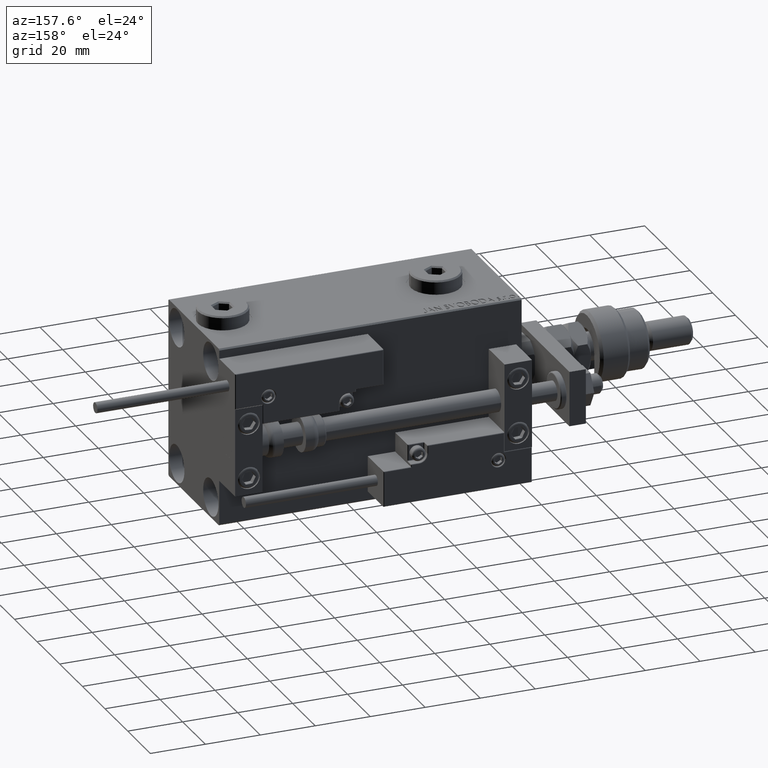
[diagram: clean part render]
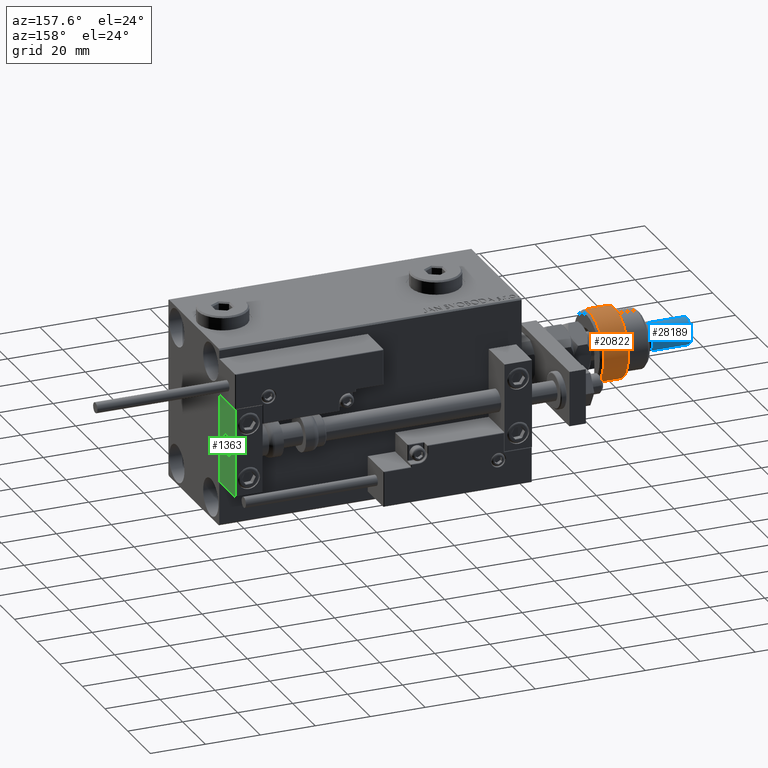
[diagram: same view with three faces highlighted in distinct colors, each labeled with its STEP entity id]
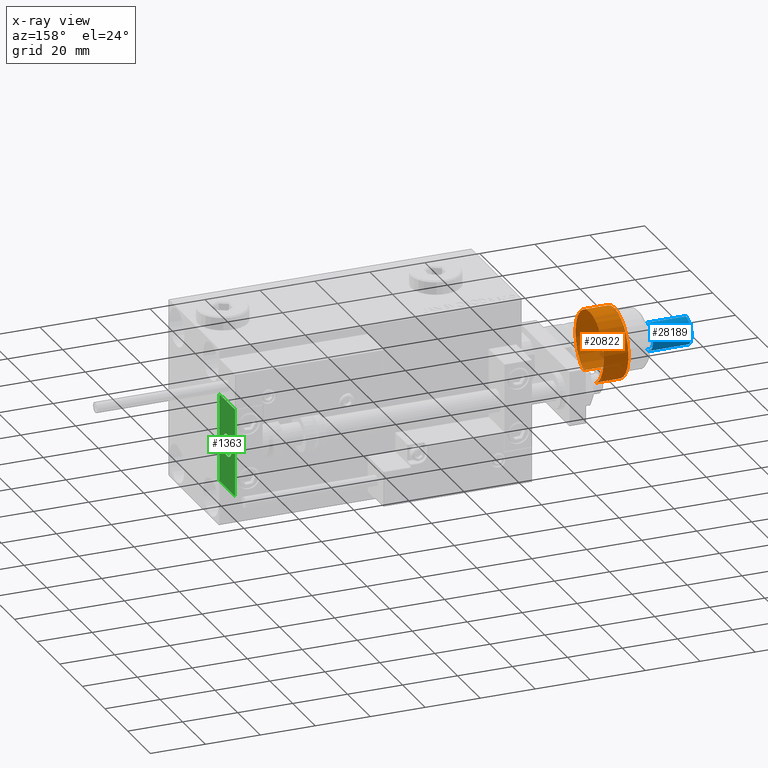
[diagram: x-ray of the same camera — body ghosted, the three highlighted faces saturated]
A machine part, auxiliary view with three faces highlighted in distinct colors.
The next image is the same camera in x-ray (body ghosted, the three faces saturated) — at least one of them is partly hidden behind the body in this view.
Their STEP definitions:

[orange] entity #20822 — the highlighted cylindrical surface (partial cylindrical patch) has radius 12.5 mm, axis along (1, -0, -0).
#3020 = CIRCLE ( 'NONE', #42509, 12.50000000000000000 ) ;
#3907 = DIRECTION ( 'NONE',  ( 1.000000000000000000, 0.000000000000000000, 0.000000000000000000 ) ) ;
#4163 = ORIENTED_EDGE ( 'NONE', *, *, #15248, .F. ) ;
#4345 = CARTESIAN_POINT ( 'NONE',  ( 0.000000000000000000, 0.000000000000000000, 11.00000000000000000 ) ) ;
#4668 = AXIS2_PLACEMENT_3D ( 'NONE', #28911, #53650, #3907 ) ;
#5880 = VERTEX_POINT ( 'NONE', #42904 ) ;
#6961 = EDGE_CURVE ( 'NONE', #38178, #50963, #49815, .T. ) ;
#7029 = ORIENTED_EDGE ( 'NONE', *, *, #36294, .T. ) ;
#7667 = DIRECTION ( 'NONE',  ( -1.000000000000000000, 0.000000000000000000, 0.000000000000000000 ) ) ;
#8473 = CYLINDRICAL_SURFACE ( 'NONE', #52844, 12.50000000000000000 ) ;
#9092 = EDGE_LOOP ( 'NONE', ( #4163, #43970, #7029, #35220, #16472 ) ) ;
#9812 = LINE ( 'NONE', #26591, #48217 ) ;
#10968 = VECTOR ( 'NONE', #26824, 1000.000000000000000 ) ;
#12046 = DIRECTION ( 'NONE',  ( -0.000000000000000000, -0.000000000000000000, -1.000000000000000000 ) ) ;
#12075 = CARTESIAN_POINT ( 'NONE',  ( 0.000000000000000000, 0.000000000000000000, 0.9999999999999956701 ) ) ;
#15248 = EDGE_CURVE ( 'NONE', #38178, #37561, #9812, .T. ) ;
#16241 = CARTESIAN_POINT ( 'NONE',  ( -11.22497216032182088, -5.500000000000007105, 10.00000000000000000 ) ) ;
#16472 = ORIENTED_EDGE ( 'NONE', *, *, #33036, .T. ) ;
#20822 = ADVANCED_FACE ( 'NONE', ( #45315 ), #8473, .T. ) ;
#26591 = CARTESIAN_POINT ( 'NONE',  ( -11.22497216032182443, 5.500000000000000000, 12.50000000000000000 ) ) ;
#26824 = DIRECTION ( 'NONE',  ( -0.000000000000000000, -0.000000000000000000, -1.000000000000000000 ) ) ;
#26857 = DIRECTION ( 'NONE',  ( -0.000000000000000000, -0.000000000000000000, -1.000000000000000000 ) ) ;
#28577 = DIRECTION ( 'NONE',  ( 1.000000000000000000, 0.000000000000000000, 0.000000000000000000 ) ) ;
#28911 = CARTESIAN_POINT ( 'NONE',  ( 0.000000000000000000, 0.000000000000000000, 0.9999999999999956701 ) ) ;
#32490 = CARTESIAN_POINT ( 'NONE',  ( -11.22497216032182443, 5.500000000000000000, 10.00000000000000000 ) ) ;
#33036 = EDGE_CURVE ( 'NONE', #37106, #37561, #37153, .T. ) ;
#34743 = EDGE_CURVE ( 'NONE', #5880, #37106, #3020, .T. ) ;
#35220 = ORIENTED_EDGE ( 'NONE', *, *, #34743, .T. ) ;
#36025 = DIRECTION ( 'NONE',  ( 1.000000000000000000, 0.000000000000000000, 0.000000000000000000 ) ) ;
#36294 = EDGE_CURVE ( 'NONE', #50963, #5880, #42291, .T. ) ;
#37106 = VERTEX_POINT ( 'NONE', #46973 ) ;
#37153 = CIRCLE ( 'NONE', #4668, 12.50000000000000000 ) ;
#37561 = VERTEX_POINT ( 'NONE', #48248 ) ;
#38178 = VERTEX_POINT ( 'NONE', #32490 ) ;
#40697 = CARTESIAN_POINT ( 'NONE',  ( 0.000000000000000000, 0.000000000000000000, 10.00000000000000000 ) ) ;
#40972 = DIRECTION ( 'NONE',  ( 0.000000000000000000, 0.000000000000000000, -1.000000000000000000 ) ) ;
#41870 = AXIS2_PLACEMENT_3D ( 'NONE', #40697, #40972, #36025 ) ;
#42291 = LINE ( 'NONE', #47971, #10968 ) ;
#42509 = AXIS2_PLACEMENT_3D ( 'NONE', #12075, #48430, #28577 ) ;
#42904 = CARTESIAN_POINT ( 'NONE',  ( -11.22497216032182088, -5.500000000000007105, 0.9999999999999956701 ) ) ;
#43970 = ORIENTED_EDGE ( 'NONE', *, *, #6961, .T. ) ;
#45315 = FACE_OUTER_BOUND ( 'NONE', #9092, .T. ) ;
#46973 = CARTESIAN_POINT ( 'NONE',  ( 12.50000000000000000, 0.000000000000000000, 0.9999999999999956701 ) ) ;
#47971 = CARTESIAN_POINT ( 'NONE',  ( -11.22497216032182088, -5.500000000000007105, 12.50000000000000000 ) ) ;
#48217 = VECTOR ( 'NONE', #26857, 1000.000000000000000 ) ;
#48248 = CARTESIAN_POINT ( 'NONE',  ( -11.22497216032182443, 5.500000000000000000, 0.9999999999999956701 ) ) ;
#48430 = DIRECTION ( 'NONE',  ( -0.000000000000000000, -0.000000000000000000, 1.000000000000000000 ) ) ;
#49815 = CIRCLE ( 'NONE', #41870, 12.50000000000000000 ) ;
#50963 = VERTEX_POINT ( 'NONE', #16241 ) ;
#52844 = AXIS2_PLACEMENT_3D ( 'NONE', #4345, #12046, #7667 ) ;
#53650 = DIRECTION ( 'NONE',  ( -0.000000000000000000, -0.000000000000000000, 1.000000000000000000 ) ) ;

[blue] entity #28189 — the highlighted cylindrical surface (edge-blend (fillet) strip) has radius 5 mm, axis along (1, -0, -0).
#13 = DIRECTION ( 'NONE',  ( 1.000000000000000000, 0.000000000000000000, 0.000000000000000000 ) ) ;
#3161 = DIRECTION ( 'NONE',  ( 0.000000000000000000, 0.000000000000000000, -1.000000000000000000 ) ) ;
#4684 = CARTESIAN_POINT ( 'NONE',  ( 0.000000000000000000, 0.000000000000000000, 21.99999999999999289 ) ) ;
#5189 = EDGE_LOOP ( 'NONE', ( #24472, #29781, #5218, #33176 ) ) ;
#5218 = ORIENTED_EDGE ( 'NONE', *, *, #20577, .T. ) ;
#5733 = VERTEX_POINT ( 'NONE', #23195 ) ;
#6936 = EDGE_CURVE ( 'NONE', #33977, #51675, #51442, .T. ) ;
#7869 = CARTESIAN_POINT ( 'NONE',  ( -5.000000000000000888, 0.000000000000000000, 21.99999999999999289 ) ) ;
#8456 = CYLINDRICAL_SURFACE ( 'NONE', #15267, 5.000000000000000888 ) ;
#10571 = LINE ( 'NONE', #35859, #42520 ) ;
#13169 = DIRECTION ( 'NONE',  ( -0.000000000000000000, -0.000000000000000000, -1.000000000000000000 ) ) ;
#15267 = AXIS2_PLACEMENT_3D ( 'NONE', #25232, #41968, #20840 ) ;
#16881 = CARTESIAN_POINT ( 'NONE',  ( 0.000000000000000000, 0.000000000000000000, 36.00000000000000711 ) ) ;
#16955 = CARTESIAN_POINT ( 'NONE',  ( 5.000000000000000888, 6.123233995736767268E-16, 36.00000000000000711 ) ) ;
#20577 = EDGE_CURVE ( 'NONE', #5733, #51675, #32610, .T. ) ;
#20840 = DIRECTION ( 'NONE',  ( -1.000000000000000000, 0.000000000000000000, 0.000000000000000000 ) ) ;
#21198 = DIRECTION ( 'NONE',  ( -0.000000000000000000, -0.000000000000000000, 1.000000000000000000 ) ) ;
#21842 = CARTESIAN_POINT ( 'NONE',  ( -5.000000000000000888, 0.000000000000000000, 36.00000000000000711 ) ) ;
#23195 = CARTESIAN_POINT ( 'NONE',  ( 5.000000000000000888, 6.123233995736767268E-16, 21.99999999999999289 ) ) ;
#24472 = ORIENTED_EDGE ( 'NONE', *, *, #33662, .T. ) ;
#25232 = CARTESIAN_POINT ( 'NONE',  ( 0.000000000000000000, 0.000000000000000000, 37.00000000000000000 ) ) ;
#26137 = EDGE_CURVE ( 'NONE', #27125, #5733, #10571, .T. ) ;
#27125 = VERTEX_POINT ( 'NONE', #16955 ) ;
#28189 = ADVANCED_FACE ( 'NONE', ( #41433 ), #8456, .T. ) ;
#29781 = ORIENTED_EDGE ( 'NONE', *, *, #26137, .T. ) ;
#32610 = CIRCLE ( 'NONE', #42334, 5.000000000000000888 ) ;
#33176 = ORIENTED_EDGE ( 'NONE', *, *, #6936, .F. ) ;
#33662 = EDGE_CURVE ( 'NONE', #33977, #27125, #48596, .T. ) ;
#33977 = VERTEX_POINT ( 'NONE', #21842 ) ;
#34938 = CARTESIAN_POINT ( 'NONE',  ( -5.000000000000000888, 0.000000000000000000, 37.00000000000000000 ) ) ;
#35487 = DIRECTION ( 'NONE',  ( -0.000000000000000000, -0.000000000000000000, -1.000000000000000000 ) ) ;
#35859 = CARTESIAN_POINT ( 'NONE',  ( 5.000000000000000888, 6.123233995736767268E-16, 37.00000000000000000 ) ) ;
#41433 = FACE_OUTER_BOUND ( 'NONE', #5189, .T. ) ;
#41968 = DIRECTION ( 'NONE',  ( -0.000000000000000000, -0.000000000000000000, -1.000000000000000000 ) ) ;
#42334 = AXIS2_PLACEMENT_3D ( 'NONE', #4684, #21198, #13 ) ;
#42520 = VECTOR ( 'NONE', #13169, 1000.000000000000000 ) ;
#44198 = AXIS2_PLACEMENT_3D ( 'NONE', #16881, #3161, #54002 ) ;
#44536 = VECTOR ( 'NONE', #35487, 1000.000000000000000 ) ;
#48596 = CIRCLE ( 'NONE', #44198, 5.000000000000000888 ) ;
#51442 = LINE ( 'NONE', #34938, #44536 ) ;
#51675 = VERTEX_POINT ( 'NONE', #7869 ) ;
#54002 = DIRECTION ( 'NONE',  ( 1.000000000000000000, 0.000000000000000000, 0.000000000000000000 ) ) ;

[green] entity #1363 — the highlighted planar face has unit normal (-1, 0, 0).
#237 = EDGE_LOOP ( 'NONE', ( #26618, #4097 ) ) ;
#1363 = ADVANCED_FACE ( 'NONE', ( #42671, #43207 ), #31112, .F. ) ;
#2561 = VECTOR ( 'NONE', #28859, 1000.000000000000000 ) ;
#3118 = CARTESIAN_POINT ( 'NONE',  ( 10.00000000000000000, 0.000000000000000000, 0.000000000000000000 ) ) ;
#4097 = ORIENTED_EDGE ( 'NONE', *, *, #11373, .T. ) ;
#5771 = DIRECTION ( 'NONE',  ( 0.000000000000000000, 0.000000000000000000, 1.000000000000000000 ) ) ;
#6051 = CIRCLE ( 'NONE', #14840, 4.000000000000000000 ) ;
#6689 = CARTESIAN_POINT ( 'NONE',  ( 10.00000000000000000, 7.000000000000000000, 15.99999999999999289 ) ) ;
#9586 = VECTOR ( 'NONE', #48930, 1000.000000000000000 ) ;
#9613 = DIRECTION ( 'NONE',  ( -1.000000000000000000, 0.000000000000000000, 0.000000000000000000 ) ) ;
#10977 = VERTEX_POINT ( 'NONE', #36104 ) ;
#11373 = EDGE_CURVE ( 'NONE', #22241, #18298, #6051, .T. ) ;
#12807 = CARTESIAN_POINT ( 'NONE',  ( 10.00000000000000000, 4.898587196589412829E-16, -4.000000000000000000 ) ) ;
#13237 = ORIENTED_EDGE ( 'NONE', *, *, #52177, .T. ) ;
#14086 = CARTESIAN_POINT ( 'NONE',  ( 10.00000000000000000, 0.000000000000000000, 0.000000000000000000 ) ) ;
#14840 = AXIS2_PLACEMENT_3D ( 'NONE', #3118, #49829, #28396 ) ;
#15681 = AXIS2_PLACEMENT_3D ( 'NONE', #14086, #17661, #47611 ) ;
#16358 = DIRECTION ( 'NONE',  ( 0.000000000000000000, -1.000000000000000000, 0.000000000000000000 ) ) ;
#16960 = LINE ( 'NONE', #29870, #43373 ) ;
#17661 = DIRECTION ( 'NONE',  ( -1.000000000000000000, 0.000000000000000000, -0.000000000000000000 ) ) ;
#18298 = VERTEX_POINT ( 'NONE', #39029 ) ;
#19255 = CARTESIAN_POINT ( 'NONE',  ( 10.00000000000000000, -7.000000000000000000, 15.99999999999999289 ) ) ;
#19758 = VECTOR ( 'NONE', #16358, 1000.000000000000000 ) ;
#22241 = VERTEX_POINT ( 'NONE', #12807 ) ;
#26618 = ORIENTED_EDGE ( 'NONE', *, *, #48476, .T. ) ;
#26923 = CARTESIAN_POINT ( 'NONE',  ( 10.00000000000000000, 0.000000000000000000, 0.000000000000000000 ) ) ;
#27481 = ORIENTED_EDGE ( 'NONE', *, *, #37318, .F. ) ;
#28396 = DIRECTION ( 'NONE',  ( 0.000000000000000000, 0.000000000000000000, 1.000000000000000000 ) ) ;
#28859 = DIRECTION ( 'NONE',  ( 0.000000000000000000, 0.000000000000000000, -1.000000000000000000 ) ) ;
#29527 = CARTESIAN_POINT ( 'NONE',  ( 10.00000000000000000, 7.000000000000000000, 15.99999999999999289 ) ) ;
#29870 = CARTESIAN_POINT ( 'NONE',  ( 10.00000000000000000, 7.000000000000000000, 15.99999999999999289 ) ) ;
#31112 = PLANE ( 'NONE',  #15681 ) ;
#31502 = AXIS2_PLACEMENT_3D ( 'NONE', #26923, #9613, #5771 ) ;
#36053 = ORIENTED_EDGE ( 'NONE', *, *, #40033, .T. ) ;
#36104 = CARTESIAN_POINT ( 'NONE',  ( 10.00000000000000000, -7.000000000000000000, -16.00000000000000711 ) ) ;
#37318 = EDGE_CURVE ( 'NONE', #40244, #40020, #16960, .T. ) ;
#39029 = CARTESIAN_POINT ( 'NONE',  ( 10.00000000000000000, 0.000000000000000000, 4.000000000000000000 ) ) ;
#40020 = VERTEX_POINT ( 'NONE', #49893 ) ;
#40033 = EDGE_CURVE ( 'NONE', #40244, #46610, #46845, .T. ) ;
#40138 = CARTESIAN_POINT ( 'NONE',  ( 10.00000000000000000, 7.000000000000000000, -16.00000000000000711 ) ) ;
#40244 = VERTEX_POINT ( 'NONE', #6689 ) ;
#41475 = ORIENTED_EDGE ( 'NONE', *, *, #52198, .F. ) ;
#42671 = FACE_BOUND ( 'NONE', #237, .T. ) ;
#43207 = FACE_OUTER_BOUND ( 'NONE', #43367, .T. ) ;
#43367 = EDGE_LOOP ( 'NONE', ( #13237, #41475, #27481, #36053 ) ) ;
#43373 = VECTOR ( 'NONE', #47444, 1000.000000000000000 ) ;
#44529 = LINE ( 'NONE', #40138, #9586 ) ;
#46610 = VERTEX_POINT ( 'NONE', #47392 ) ;
#46845 = LINE ( 'NONE', #29527, #19758 ) ;
#47291 = CIRCLE ( 'NONE', #31502, 4.000000000000000000 ) ;
#47392 = CARTESIAN_POINT ( 'NONE',  ( 10.00000000000000000, -7.000000000000000000, 15.99999999999999289 ) ) ;
#47444 = DIRECTION ( 'NONE',  ( 0.000000000000000000, 0.000000000000000000, -1.000000000000000000 ) ) ;
#47611 = DIRECTION ( 'NONE',  ( -0.000000000000000000, 0.000000000000000000, 1.000000000000000000 ) ) ;
#48476 = EDGE_CURVE ( 'NONE', #18298, #22241, #47291, .T. ) ;
#48930 = DIRECTION ( 'NONE',  ( 0.000000000000000000, -1.000000000000000000, 0.000000000000000000 ) ) ;
#49211 = LINE ( 'NONE', #19255, #2561 ) ;
#49829 = DIRECTION ( 'NONE',  ( -1.000000000000000000, 0.000000000000000000, 0.000000000000000000 ) ) ;
#49893 = CARTESIAN_POINT ( 'NONE',  ( 10.00000000000000000, 7.000000000000000000, -16.00000000000000711 ) ) ;
#52177 = EDGE_CURVE ( 'NONE', #46610, #10977, #49211, .T. ) ;
#52198 = EDGE_CURVE ( 'NONE', #40020, #10977, #44529, .T. ) ;